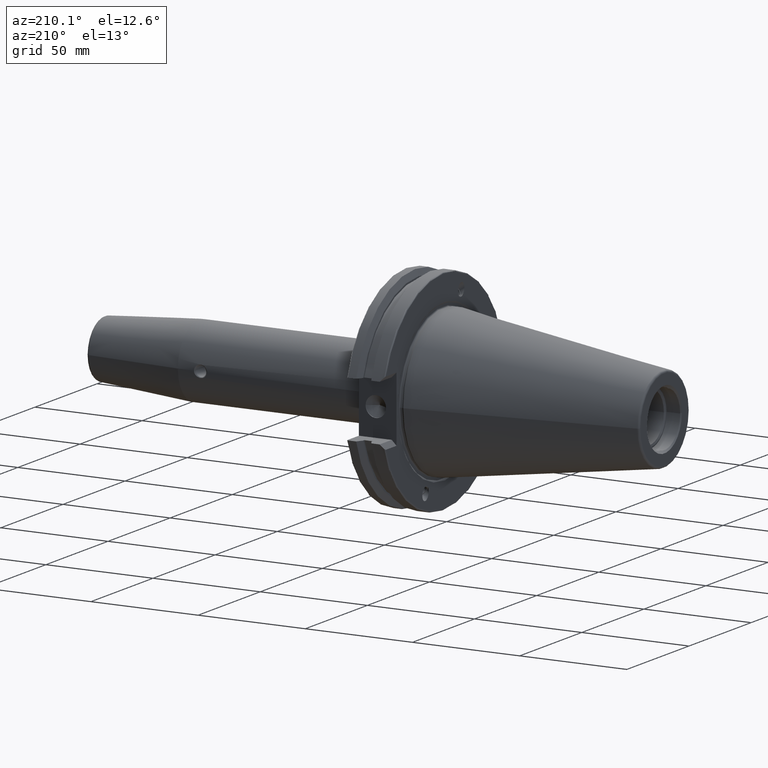
[diagram: clean part render]
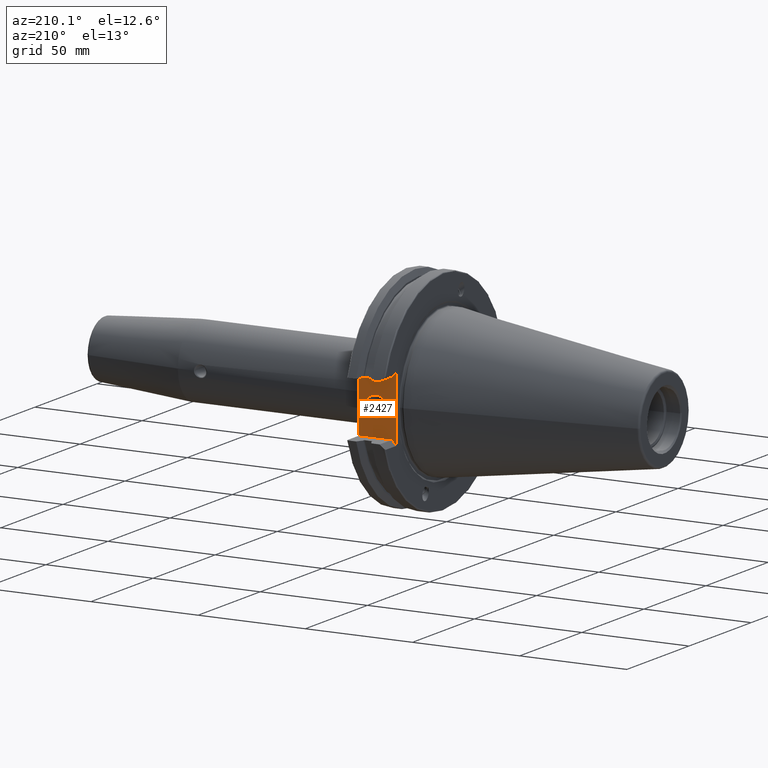
[diagram: same view with one face highlighted and labeled with its STEP entity id]
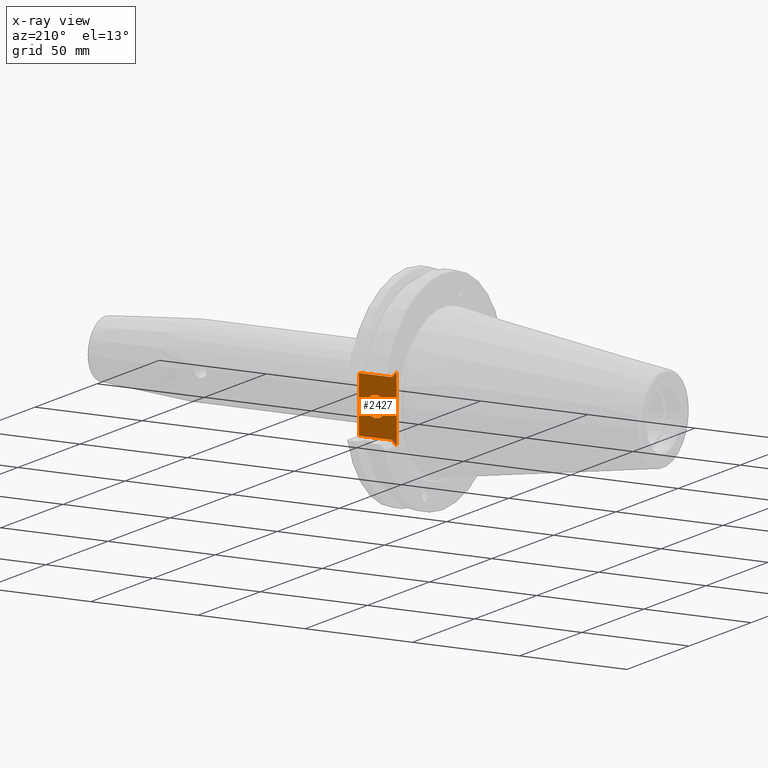
[diagram: x-ray of the same camera — body ghosted, the highlighted face saturated]
A machine part, auxiliary view. The second image highlights one B-rep face of the part: STEP entity #2427.
The next image is the same camera in x-ray: the body ghosted, the highlighted face saturated — about 0% of this face is hidden behind the body in this view.
In plain terms, the highlighted planar face has unit normal (0, 1, 0).
Its self-contained STEP definition (entity closure, byte-faithful):
#565=DIRECTION('',(0.E0,0.E0,-1.E0));
#566=VECTOR('',#565,2.59E1);
#567=CARTESIAN_POINT('',(1.905E1,3.7719E1,1.295E1));
#568=LINE('',#567,#566);
#631=DIRECTION('',(-7.071067811865E-1,0.E0,-7.071067811865E-1));
#632=VECTOR('',#631,3.111269837221E0);
#633=CARTESIAN_POINT('',(3.7E0,3.7719E1,-1.295E1));
#634=LINE('',#633,#632);
#635=CARTESIAN_POINT('',(1.11341E1,3.7719E1,0.E0));
#636=DIRECTION('',(0.E0,1.E0,0.E0));
#637=DIRECTION('',(1.E0,0.E0,0.E0));
#638=AXIS2_PLACEMENT_3D('',#635,#636,#637);
#640=CARTESIAN_POINT('',(1.11341E1,3.7719E1,0.E0));
#641=DIRECTION('',(0.E0,1.E0,0.E0));
#642=DIRECTION('',(-1.E0,0.E0,0.E0));
#643=AXIS2_PLACEMENT_3D('',#640,#641,#642);
#645=DIRECTION('',(1.E0,0.E0,0.E0));
#646=VECTOR('',#645,1.535E1);
#647=CARTESIAN_POINT('',(3.7E0,3.7719E1,1.295E1));
#648=LINE('',#647,#646);
#649=DIRECTION('',(0.E0,0.E0,-1.E0));
#650=VECTOR('',#649,3.03E1);
#651=CARTESIAN_POINT('',(1.5E0,3.7719E1,1.515E1));
#652=LINE('',#651,#650);
#653=DIRECTION('',(-1.E0,0.E0,0.E0));
#654=VECTOR('',#653,1.535E1);
#655=CARTESIAN_POINT('',(1.905E1,3.7719E1,-1.295E1));
#656=LINE('',#655,#654);
#806=DIRECTION('',(7.071067811865E-1,0.E0,-7.071067811865E-1));
#807=VECTOR('',#806,3.111269837221E0);
#808=CARTESIAN_POINT('',(1.5E0,3.7719E1,1.515E1));
#809=LINE('',#808,#807);
#1403=CARTESIAN_POINT('',(1.905E1,3.7719E1,1.295E1));
#1404=CARTESIAN_POINT('',(1.905E1,3.7719E1,-1.295E1));
#1405=VERTEX_POINT('',#1403);
#1406=VERTEX_POINT('',#1404);
#1454=CARTESIAN_POINT('',(1.58966E1,3.7719E1,0.E0));
#1455=CARTESIAN_POINT('',(6.3716E0,3.7719E1,0.E0));
#1456=VERTEX_POINT('',#1454);
#1457=VERTEX_POINT('',#1455);
#1512=CARTESIAN_POINT('',(3.7E0,3.7719E1,-1.295E1));
#1514=VERTEX_POINT('',#1512);
#1517=CARTESIAN_POINT('',(3.7E0,3.7719E1,1.295E1));
#1519=VERTEX_POINT('',#1517);
#1528=CARTESIAN_POINT('',(1.5E0,3.7719E1,-1.515E1));
#1529=VERTEX_POINT('',#1528);
#1530=CARTESIAN_POINT('',(1.5E0,3.7719E1,1.515E1));
#1531=VERTEX_POINT('',#1530);
#2405=CARTESIAN_POINT('',(0.E0,3.7719E1,0.E0));
#2406=DIRECTION('',(0.E0,1.E0,0.E0));
#2407=DIRECTION('',(1.E0,0.E0,0.E0));
#2408=AXIS2_PLACEMENT_3D('',#2405,#2406,#2407);
#2409=PLANE('',#2408);
#2411=ORIENTED_EDGE('',*,*,#2410,.F.);
#2413=ORIENTED_EDGE('',*,*,#2412,.F.);
#2415=ORIENTED_EDGE('',*,*,#2414,.T.);
#2416=ORIENTED_EDGE('',*,*,#2398,.F.);
#2417=ORIENTED_EDGE('',*,*,#2294,.F.);
#2418=ORIENTED_EDGE('',*,*,#2324,.F.);
#2419=EDGE_LOOP('',(#2411,#2413,#2415,#2416,#2417,#2418));
#2420=FACE_OUTER_BOUND('',#2419,.F.);
#2422=ORIENTED_EDGE('',*,*,#2421,.T.);
#2424=ORIENTED_EDGE('',*,*,#2423,.T.);
#2425=EDGE_LOOP('',(#2422,#2424));
#2426=FACE_BOUND('',#2425,.F.);
#2427=ADVANCED_FACE('',(#2420,#2426),#2409,.T.);
#639=CIRCLE('',#638,4.7625E0);
#644=CIRCLE('',#643,4.7625E0);
#2294=EDGE_CURVE('',#1406,#1514,#656,.T.);
#2324=EDGE_CURVE('',#1405,#1406,#568,.T.);
#2398=EDGE_CURVE('',#1514,#1529,#634,.T.);
#2410=EDGE_CURVE('',#1519,#1405,#648,.T.);
#2412=EDGE_CURVE('',#1531,#1519,#809,.T.);
#2414=EDGE_CURVE('',#1531,#1529,#652,.T.);
#2421=EDGE_CURVE('',#1456,#1457,#639,.T.);
#2423=EDGE_CURVE('',#1457,#1456,#644,.T.);